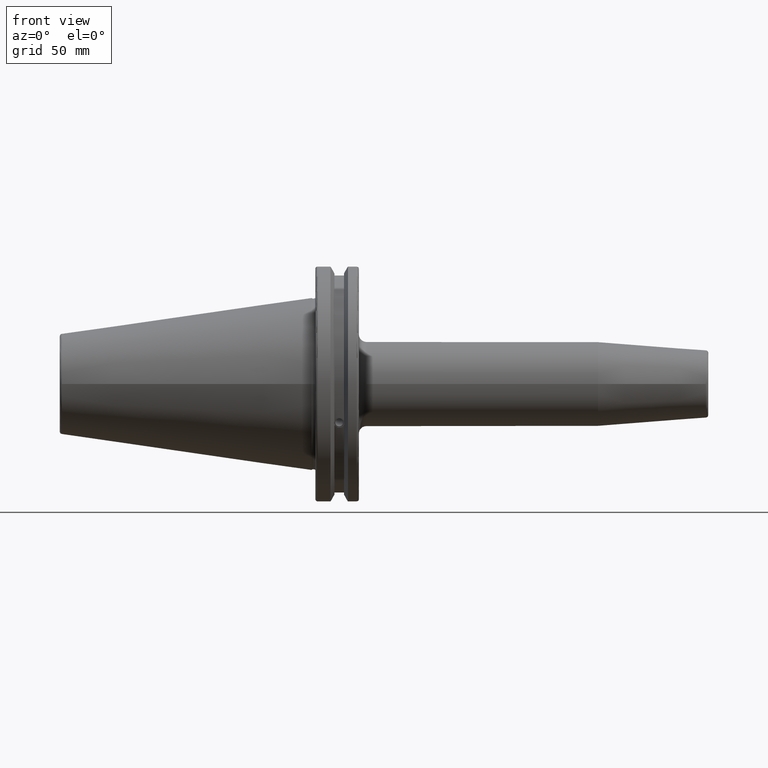
[diagram: clean part render]
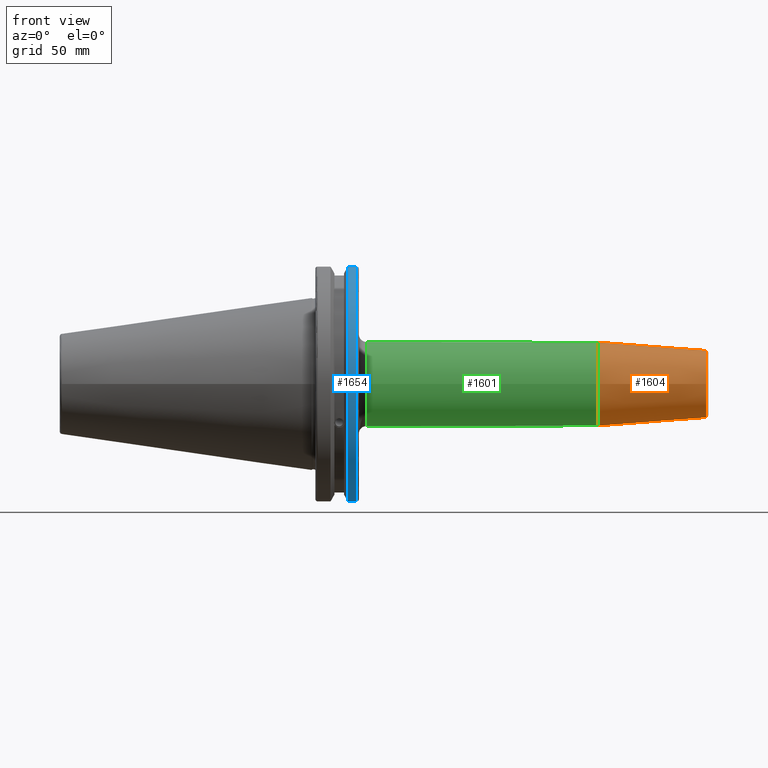
[diagram: same view with three faces highlighted in distinct colors, each labeled with its STEP entity id]
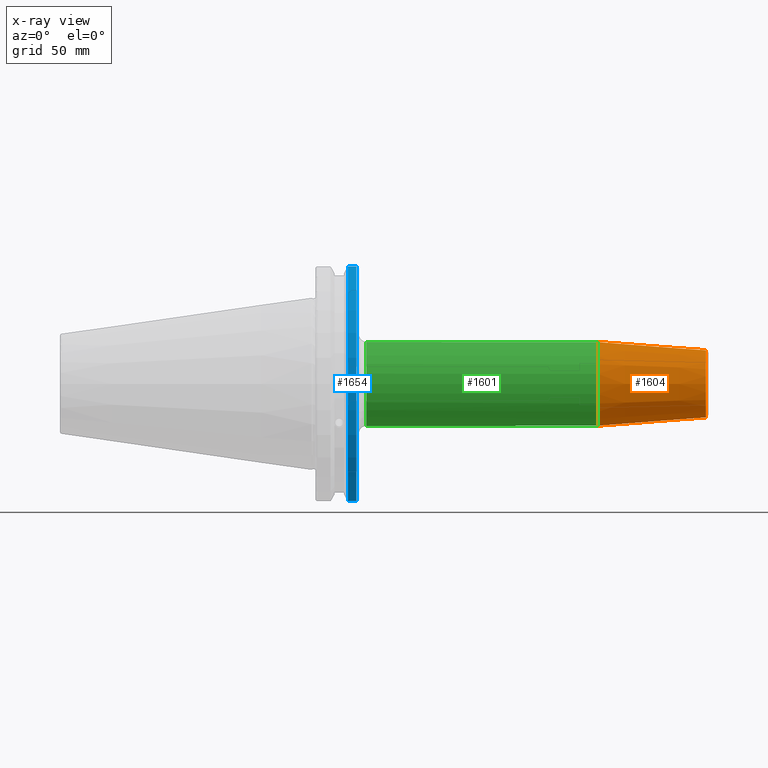
[diagram: x-ray of the same camera — body ghosted, the three highlighted faces saturated]
A machine part, front view with three faces highlighted in distinct colors.
The next image is the same camera in x-ray (body ghosted, the three faces saturated) — at least one of them is partly hidden behind the body in this view.
Their STEP definitions:

[orange] entity #1604 — the highlighted conical surface has half-angle 4.5 deg.
#193=FACE_OUTER_BOUND('',#295,.T.);
#295=EDGE_LOOP('',(#1166,#1167,#1168,#1169,#1170));
#404=LINE('',#2536,#504);
#504=VECTOR('',#2006,15.25);
#603=CIRCLE('',#1742,17.);
#607=CIRCLE('',#1748,13.5725268420749);
#608=CIRCLE('',#1749,13.5725268420749);
#693=VERTEX_POINT('',#2501);
#706=VERTEX_POINT('',#2530);
#707=VERTEX_POINT('',#2532);
#868=EDGE_CURVE('',#693,#693,#603,.T.);
#883=EDGE_CURVE('',#706,#707,#607,.T.);
#884=EDGE_CURVE('',#707,#706,#608,.T.);
#885=EDGE_CURVE('',#707,#693,#404,.T.);
#1166=ORIENTED_EDGE('',*,*,#884,.F.);
#1167=ORIENTED_EDGE('',*,*,#885,.T.);
#1168=ORIENTED_EDGE('',*,*,#868,.T.);
#1169=ORIENTED_EDGE('',*,*,#885,.F.);
#1170=ORIENTED_EDGE('',*,*,#883,.F.);
#1572=CONICAL_SURFACE('',#1750,15.25,0.0785398163397453);
#1604=ADVANCED_FACE('',(#193),#1572,.T.);
#1742=AXIS2_PLACEMENT_3D('',#2502,#1977,#1978);
#1748=AXIS2_PLACEMENT_3D('',#2533,#2000,#2001);
#1749=AXIS2_PLACEMENT_3D('',#2534,#2002,#2003);
#1750=AXIS2_PLACEMENT_3D('',#2535,#2004,#2005);
#1977=DIRECTION('center_axis',(1.,0.,0.));
#1978=DIRECTION('ref_axis',(0.,0.,-1.));
#2000=DIRECTION('center_axis',(1.,0.,0.));
#2001=DIRECTION('ref_axis',(0.,-1.,3.06161699786838E-17));
#2002=DIRECTION('center_axis',(1.,0.,0.));
#2003=DIRECTION('ref_axis',(0.,-1.,3.06161699786838E-17));
#2004=DIRECTION('center_axis',(-1.,0.,0.));
#2005=DIRECTION('ref_axis',(0.,1.,0.));
#2006=DIRECTION('',(-0.996917333733128,-0.0784590957278454,-9.60846804471017E-18));
#2501=CARTESIAN_POINT('',(115.528283423389,-17.,-2.0818995585505E-15));
#2502=CARTESIAN_POINT('Origin',(115.528283423389,0.,0.));
#2530=CARTESIAN_POINT('',(159.078459095728,-1.66215515534886E-15,13.5725268420749));
#2532=CARTESIAN_POINT('',(159.078459095728,-13.5725268420749,-1.66215515534886E-15));
#2533=CARTESIAN_POINT('Origin',(159.078459095728,0.,-2.07769394418607E-15));
#2534=CARTESIAN_POINT('Origin',(159.078459095728,0.,-2.07769394418607E-15));
#2535=CARTESIAN_POINT('Origin',(137.764141711694,0.,0.));
#2536=CARTESIAN_POINT('',(137.764141711694,-15.25,-1.86758636869971E-15));

[blue] entity #1654 — the highlighted cylindrical surface (partial cylindrical patch) has radius 49.2125 mm, axis along (1, 0, 0).
#166=CYLINDRICAL_SURFACE('',#1842,49.2125);
#243=FACE_OUTER_BOUND('',#354,.T.);
#354=EDGE_LOOP('',(#1460,#1461,#1462,#1463));
#472=LINE('',#3270,#572);
#473=LINE('',#3272,#573);
#572=VECTOR('',#2256,10.);
#573=VECTOR('',#2259,10.);
#616=CIRCLE('',#1768,49.2125);
#636=CIRCLE('',#1810,49.2125);
#731=VERTEX_POINT('',#2740);
#732=VERTEX_POINT('',#2744);
#781=VERTEX_POINT('',#3078);
#782=VERTEX_POINT('',#3087);
#916=EDGE_CURVE('',#732,#731,#616,.T.);
#986=EDGE_CURVE('',#781,#782,#636,.T.);
#1048=EDGE_CURVE('',#782,#731,#472,.T.);
#1049=EDGE_CURVE('',#732,#781,#473,.T.);
#1460=ORIENTED_EDGE('',*,*,#986,.F.);
#1461=ORIENTED_EDGE('',*,*,#1049,.F.);
#1462=ORIENTED_EDGE('',*,*,#916,.T.);
#1463=ORIENTED_EDGE('',*,*,#1048,.F.);
#1654=ADVANCED_FACE('',(#243),#166,.T.);
#1768=AXIS2_PLACEMENT_3D('',#2745,#2051,#2052);
#1810=AXIS2_PLACEMENT_3D('',#3088,#2158,#2159);
#1842=AXIS2_PLACEMENT_3D('',#3271,#2257,#2258);
#2051=DIRECTION('center_axis',(1.,0.,0.));
#2052=DIRECTION('ref_axis',(0.,0.,-1.));
#2158=DIRECTION('center_axis',(1.,0.,0.));
#2159=DIRECTION('ref_axis',(0.,-1.,1.60812264967664E-16));
#2256=DIRECTION('',(-1.,0.,0.));
#2257=DIRECTION('center_axis',(1.,0.,0.));
#2258=DIRECTION('ref_axis',(0.,-1.,1.22464679914735E-16));
#2259=DIRECTION('',(1.,0.,0.));
#2740=CARTESIAN_POINT('',(14.6531090340487,-13.4317035994433,-47.3440544806494));
#2744=CARTESIAN_POINT('',(14.6531090340487,-13.4317035994433,47.3440544806494));
#2745=CARTESIAN_POINT('Origin',(14.6531090340487,0.,0.));
#3078=CARTESIAN_POINT('',(18.05,-13.4317035994433,47.3440544806494));
#3087=CARTESIAN_POINT('',(18.05,-13.4317035994433,-47.3440544806494));
#3088=CARTESIAN_POINT('Origin',(18.05,0.,0.));
#3270=CARTESIAN_POINT('',(16.8515545170244,-13.4317035994433,-47.3440544806494));
#3271=CARTESIAN_POINT('Origin',(16.8515545170244,0.,0.));
#3272=CARTESIAN_POINT('',(16.8515545170244,-13.4317035994433,47.3440544806494));

[green] entity #1601 — the highlighted cylindrical surface (bore or boss wall) has radius 17 mm, axis along (1, 0, 0).
#151=CYLINDRICAL_SURFACE('',#1741,17.);
#190=FACE_OUTER_BOUND('',#291,.T.);
#291=EDGE_LOOP('',(#1143,#1144,#1145,#1146,#1147));
#393=LINE('',#2503,#493);
#493=VECTOR('',#1979,17.);
#599=CIRCLE('',#1737,17.);
#602=CIRCLE('',#1740,17.);
#603=CIRCLE('',#1742,17.);
#690=VERTEX_POINT('',#2493);
#691=VERTEX_POINT('',#2494);
#693=VERTEX_POINT('',#2501);
#864=EDGE_CURVE('',#690,#691,#599,.T.);
#867=EDGE_CURVE('',#691,#690,#602,.T.);
#868=EDGE_CURVE('',#693,#693,#603,.T.);
#869=EDGE_CURVE('',#693,#690,#393,.T.);
#1143=ORIENTED_EDGE('',*,*,#868,.F.);
#1144=ORIENTED_EDGE('',*,*,#869,.T.);
#1145=ORIENTED_EDGE('',*,*,#867,.F.);
#1146=ORIENTED_EDGE('',*,*,#864,.F.);
#1147=ORIENTED_EDGE('',*,*,#869,.F.);
#1601=ADVANCED_FACE('',(#190),#151,.T.);
#1737=AXIS2_PLACEMENT_3D('',#2495,#1967,#1968);
#1740=AXIS2_PLACEMENT_3D('',#2499,#1973,#1974);
#1741=AXIS2_PLACEMENT_3D('',#2500,#1975,#1976);
#1742=AXIS2_PLACEMENT_3D('',#2502,#1977,#1978);
#1967=DIRECTION('center_axis',(-1.,0.,0.));
#1968=DIRECTION('ref_axis',(0.,-1.,-1.22464679914735E-16));
#1973=DIRECTION('center_axis',(-1.,0.,0.));
#1974=DIRECTION('ref_axis',(0.,-1.,-1.22464679914735E-16));
#1975=DIRECTION('center_axis',(1.,0.,0.));
#1976=DIRECTION('ref_axis',(0.,1.,0.));
#1977=DIRECTION('center_axis',(1.,0.,0.));
#1978=DIRECTION('ref_axis',(0.,0.,-1.));
#1979=DIRECTION('',(-1.,0.,0.));
#2493=CARTESIAN_POINT('',(22.05,-17.,-2.0818995585505E-15));
#2494=CARTESIAN_POINT('',(22.05,-2.0818995585505E-15,-17.));
#2495=CARTESIAN_POINT('Origin',(22.05,0.,0.));
#2499=CARTESIAN_POINT('Origin',(22.05,0.,0.));
#2500=CARTESIAN_POINT('Origin',(67.2891417116944,0.,0.));
#2501=CARTESIAN_POINT('',(115.528283423389,-17.,-2.0818995585505E-15));
#2502=CARTESIAN_POINT('Origin',(115.528283423389,0.,0.));
#2503=CARTESIAN_POINT('',(67.2891417116944,-17.,-2.0818995585505E-15));